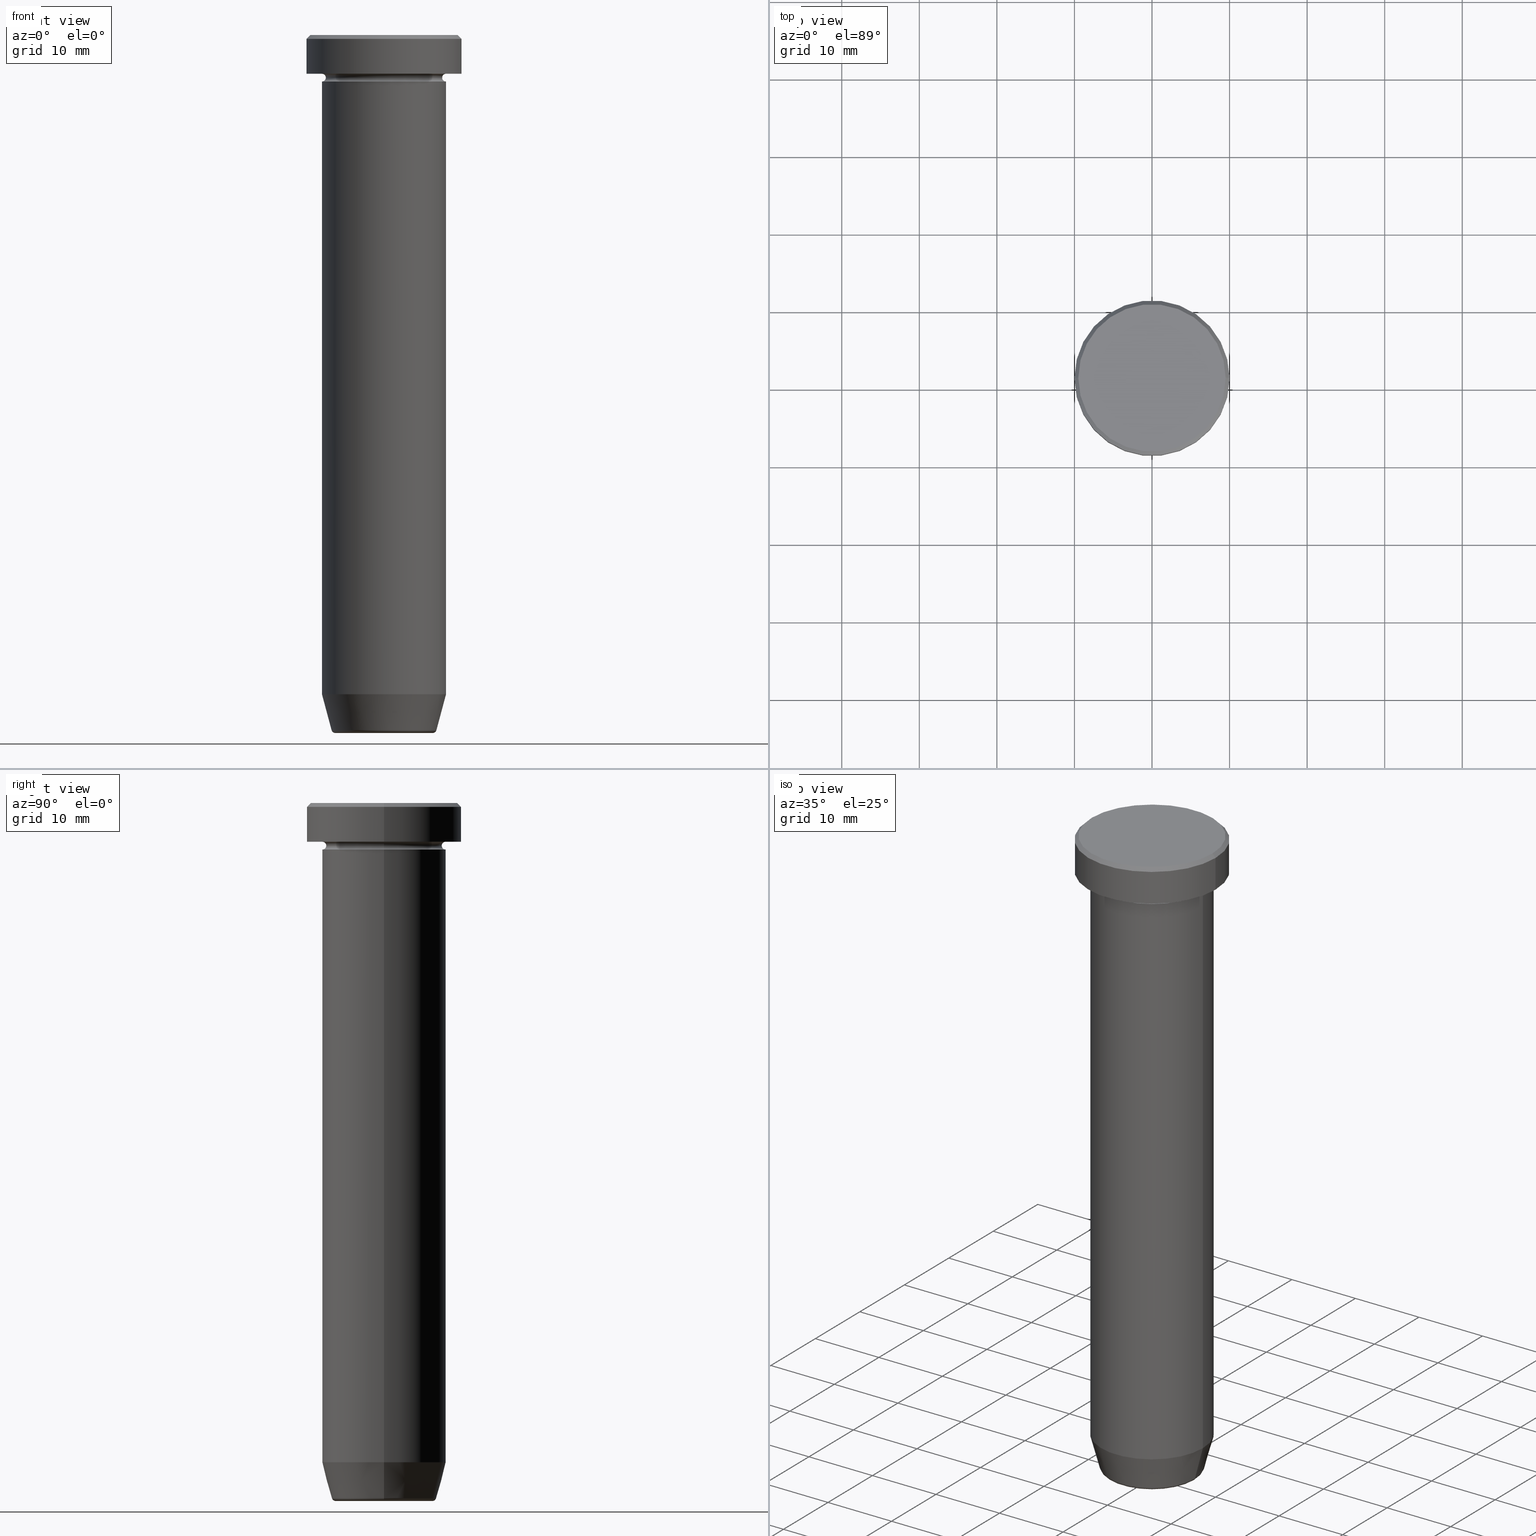
[diagram: canonical four-view strip — front | top / right | iso, engineering-drawing reading convention]
A machine part, canonical four-view strip (front | top / right | iso — engineering-drawing reading convention). The complete STEP part file that produces these views, byte-faithful:
ISO-10303-21;
HEADER;
FILE_DESCRIPTION (( 'STEP AP203' ),
    '1' );
FILE_NAME ('8b45.STEP',
    '2024-01-02T22:05:49',
    ( '' ),
    ( '' ),
    'SwSTEP 2.0',
    'SolidWorks 2019',
    '' );
FILE_SCHEMA (( 'CONFIG_CONTROL_DESIGN' ));
ENDSEC;

DATA;
#1 = DIRECTION ( 'NONE',  ( 1.000000000000000000, 0.000000000000000000, 0.000000000000000000 ) ) ;
#2 = ORIENTED_EDGE ( 'NONE', *, *, #20, .T. ) ;
#3 = CIRCLE ( 'NONE', #562, 8.000000000000000000 ) ;
#4 = LOCAL_TIME ( 23, 5, 49.00000000000000000, #597 ) ;
#5 = COORDINATED_UNIVERSAL_TIME_OFFSET ( 1, 0, .AHEAD. ) ;
#6 = LINE ( 'NONE', #510, #166 ) ;
#7 = ORIENTED_EDGE ( 'NONE', *, *, #205, .T. ) ;
#8 = CALENDAR_DATE ( 2024, 2, 1 ) ;
#9 = DIRECTION ( 'NONE',  ( 1.000000000000000000, 0.000000000000000000, 0.000000000000000000 ) ) ;
#10 = ORIENTED_EDGE ( 'NONE', *, *, #31, .F. ) ;
#11 = ADVANCED_FACE ( 'NONE', ( #86 ), #393, .T. ) ;
#12 = LINE ( 'NONE', #467, #375 ) ;
#13 = UNCERTAINTY_MEASURE_WITH_UNIT (LENGTH_MEASURE( 1.000000000000000082E-05 ), #97, 'distance_accuracy_value', 'NONE');
#14 = VECTOR ( 'NONE', #41, 1000.000000000000000 ) ;
#15 = CIRCLE ( 'NONE', #157, 8.000000000000000000 ) ;
#16 = AXIS2_PLACEMENT_3D ( 'NONE', #544, #37, #360 ) ;
#17 = CARTESIAN_POINT ( 'NONE',  ( 0.000000000000000000, 0.000000000000000000, -90.00000000000000000 ) ) ;
#18 = EDGE_LOOP ( 'NONE', ( #394, #294, #177, #195 ) ) ;
#19 = CARTESIAN_POINT ( 'NONE',  ( 8.000000000000000000, 0.000000000000000000, 0.000000000000000000 ) ) ;
#20 = EDGE_CURVE ( 'NONE', #169, #511, #317, .T. ) ;
#21 = ORIENTED_EDGE ( 'NONE', *, *, #198, .F. ) ;
#22 = DIRECTION ( 'NONE',  ( 1.000000000000000000, 0.000000000000000000, 0.000000000000000000 ) ) ;
#23 = ORIENTED_EDGE ( 'NONE', *, *, #134, .F. ) ;
#24 = CIRCLE ( 'NONE', #515, 9.499999999999994671 ) ;
#25 = AXIS2_PLACEMENT_3D ( 'NONE', #29, #486, #22 ) ;
#26 = LINE ( 'NONE', #207, #277 ) ;
#27 = AXIS2_PLACEMENT_3D ( 'NONE', #447, #308, #34 ) ;
#28 = ORIENTED_EDGE ( 'NONE', *, *, #245, .F. ) ;
#29 = CARTESIAN_POINT ( 'NONE',  ( 0.000000000000000000, 0.000000000000000000, -89.50000000000000000 ) ) ;
#30 = EDGE_LOOP ( 'NONE', ( #74, #241, #103, #115 ) ) ;
#31 = EDGE_CURVE ( 'NONE', #271, #152, #267, .T. ) ;
#32 = DIRECTION ( 'NONE',  ( -0.000000000000000000, -0.000000000000000000, 1.000000000000000000 ) ) ;
#33 = DIRECTION ( 'NONE',  ( -1.000000000000000000, 1.224646799147351482E-16, 0.000000000000000000 ) ) ;
#34 = DIRECTION ( 'NONE',  ( 1.000000000000000000, 0.000000000000000000, 0.000000000000000000 ) ) ;
#35 = AXIS2_PLACEMENT_3D ( 'NONE', #328, #513, #508 ) ;
#36 = DIRECTION ( 'NONE',  ( -1.000000000000000000, 0.000000000000000000, 0.000000000000000000 ) ) ;
#37 = DIRECTION ( 'NONE',  ( -0.000000000000000000, -0.000000000000000000, 1.000000000000000000 ) ) ;
#38 = CARTESIAN_POINT ( 'NONE',  ( -8.000000000000000000, 9.797174393178825657E-16, 0.000000000000000000 ) ) ;
#39 = ADVANCED_FACE ( 'NONE', ( #91, #405 ), #545, .T. ) ;
#40 = DIRECTION ( 'NONE',  ( 1.000000000000000000, 0.000000000000000000, 0.000000000000000000 ) ) ;
#41 = DIRECTION ( 'NONE',  ( -0.000000000000000000, -0.000000000000000000, 1.000000000000000000 ) ) ;
#42 = CARTESIAN_POINT ( 'NONE',  ( 0.000000000000000000, 0.000000000000000000, -22.50000000000000000 ) ) ;
#43 = CARTESIAN_POINT ( 'NONE',  ( 6.276590543854902116, 0.000000000000000000, -90.00000000000000000 ) ) ;
#44 = AXIS2_PLACEMENT_3D ( 'NONE', #437, #527, #68 ) ;
#45 = EDGE_CURVE ( 'NONE', #542, #210, #362, .T. ) ;
#46 = DIRECTION ( 'NONE',  ( 1.000000000000000000, 0.000000000000000000, 0.000000000000000000 ) ) ;
#47 = FACE_OUTER_BOUND ( 'NONE', #156, .T. ) ;
#48 = PERSON_AND_ORGANIZATION_ROLE ( 'classification_officer' ) ;
#49 = APPROVAL ( #54, 'NEUR�EN�' ) ;
#50 = DIRECTION ( 'NONE',  ( 1.000000000000000000, 0.000000000000000000, 0.000000000000000000 ) ) ;
#51 = COORDINATED_UNIVERSAL_TIME_OFFSET ( 1, 0, .AHEAD. ) ;
#52 = DIRECTION ( 'NONE',  ( 0.000000000000000000, 0.000000000000000000, -1.000000000000000000 ) ) ;
#53 = TOROIDAL_SURFACE ( 'NONE', #129, 6.276590543854902116, 0.5000000000000000000 ) ;
#54 = APPROVAL_STATUS ( 'not_yet_approved' ) ;
#55 = CARTESIAN_POINT ( 'NONE',  ( 0.000000000000000000, 0.000000000000000000, -6.000000000000000000 ) ) ;
#56 = ORIENTED_EDGE ( 'NONE', *, *, #31, .T. ) ;
#57 = EDGE_CURVE ( 'NONE', #238, #271, #184, .T. ) ;
#58 = PERSON_AND_ORGANIZATION_ROLE ( 'creator' ) ;
#59 = DIRECTION ( 'NONE',  ( 1.000000000000000000, 0.000000000000000000, 0.000000000000000000 ) ) ;
#60 = EDGE_LOOP ( 'NONE', ( #514, #56, #520, #488 ) ) ;
#61 = CC_DESIGN_PERSON_AND_ORGANIZATION_ASSIGNMENT ( #558, #58, ( #258 ) ) ;
#62 = DIRECTION ( 'NONE',  ( 1.000000000000000000, 0.000000000000000000, 0.000000000000000000 ) ) ;
#63 = DESIGN_CONTEXT ( 'detailed design', #442, 'design' ) ;
#64 = ORIENTED_EDGE ( 'NONE', *, *, #590, .F. ) ;
#65 = VECTOR ( 'NONE', #233, 1000.000000000000114 ) ;
#66 = EDGE_CURVE ( 'NONE', #140, #424, #450, .T. ) ;
#67 = CC_DESIGN_APPROVAL ( #79, ( #291 ) ) ;
#68 = DIRECTION ( 'NONE',  ( 1.000000000000000000, 0.000000000000000000, 0.000000000000000000 ) ) ;
#69 = VERTEX_POINT ( 'NONE', #315 ) ;
#70 = DIRECTION ( 'NONE',  ( 1.000000000000000000, 0.000000000000000000, 0.000000000000000000 ) ) ;
#71 = PRODUCT ( '8b45', '8b45', '', ( #414 ) ) ;
#72 = ORIENTED_EDGE ( 'NONE', *, *, #57, .T. ) ;
#73 = DIRECTION ( 'NONE',  ( -0.000000000000000000, -0.000000000000000000, 1.000000000000000000 ) ) ;
#74 = ORIENTED_EDGE ( 'NONE', *, *, #530, .T. ) ;
#75 = AXIS2_PLACEMENT_3D ( 'NONE', #222, #220, #453 ) ;
#76 = DIRECTION ( 'NONE',  ( 1.000000000000000000, 0.000000000000000000, 0.000000000000000000 ) ) ;
#77 = AXIS2_PLACEMENT_3D ( 'NONE', #310, #498, #84 ) ;
#78 = ORIENTED_EDGE ( 'NONE', *, *, #66, .T. ) ;
#79 = APPROVAL ( #239, 'NEUR�EN�' ) ;
#80 = CARTESIAN_POINT ( 'NONE',  ( 0.000000000000000000, -3.469446951953614189E-15, -22.50000000000000000 ) ) ;
#81 = DIRECTION ( 'NONE',  ( -0.000000000000000000, -1.000000000000000000, -0.000000000000000000 ) ) ;
#82 = PLANE ( 'NONE',  #27 ) ;
#83 = DIRECTION ( 'NONE',  ( 0.000000000000000000, 0.000000000000000000, -1.000000000000000000 ) ) ;
#84 = DIRECTION ( 'NONE',  ( 1.000000000000000000, 0.000000000000000000, 0.000000000000000000 ) ) ;
#85 = EDGE_CURVE ( 'NONE', #127, #238, #175, .T. ) ;
#86 = FACE_OUTER_BOUND ( 'NONE', #60, .T. ) ;
#87 = LOCAL_TIME ( 23, 5, 49.00000000000000000, #145 ) ;
#88 = DIRECTION ( 'NONE',  ( -0.000000000000000000, -0.000000000000000000, 1.000000000000000000 ) ) ;
#89 = DIRECTION ( 'NONE',  ( -0.000000000000000000, -0.000000000000000000, 1.000000000000000000 ) ) ;
#90 = CARTESIAN_POINT ( 'NONE',  ( -7.500000000000000000, 9.491012693391985815E-16, -5.500000000000000000 ) ) ;
#91 = FACE_BOUND ( 'NONE', #352, .T. ) ;
#92 = PERSON_AND_ORGANIZATION ( #571, #121 ) ;
#93 = DIRECTION ( 'NONE',  ( -0.000000000000000000, -0.000000000000000000, 1.000000000000000000 ) ) ;
#94 = CIRCLE ( 'NONE', #303, 7.500000000000000000 ) ;
#95 = PERSON_AND_ORGANIZATION_ROLE ( 'creator' ) ;
#96 = DIRECTION ( 'NONE',  ( -0.000000000000000000, -0.000000000000000000, 1.000000000000000000 ) ) ;
#97 =( LENGTH_UNIT ( ) NAMED_UNIT ( * ) SI_UNIT ( .MILLI., .METRE. ) );
#98 = FACE_OUTER_BOUND ( 'NONE', #30, .T. ) ;
#99 = ORIENTED_EDGE ( 'NONE', *, *, #523, .T. ) ;
#100 = CALENDAR_DATE ( 2024, 2, 1 ) ;
#101 = ADVANCED_FACE ( 'NONE', ( #309 ), #284, .F. ) ;
#102 = DIRECTION ( 'NONE',  ( -1.000000000000000000, 0.000000000000000000, 0.000000000000000000 ) ) ;
#103 = ORIENTED_EDGE ( 'NONE', *, *, #205, .F. ) ;
#104 = AXIS2_PLACEMENT_3D ( 'NONE', #171, #217, #176 ) ;
#105 = DIRECTION ( 'NONE',  ( 1.224646799147353207E-16, 1.000000000000000000, 0.000000000000000000 ) ) ;
#106 = CARTESIAN_POINT ( 'NONE',  ( 0.000000000000000000, 8.000000000000000000, -22.50000000000000000 ) ) ;
#107 = FACE_OUTER_BOUND ( 'NONE', #417, .T. ) ;
#108 = ORIENTED_EDGE ( 'NONE', *, *, #45, .T. ) ;
#109 = AXIS2_PLACEMENT_3D ( 'NONE', #132, #501, #172 ) ;
#110 = AXIS2_PLACEMENT_3D ( 'NONE', #435, #160, #338 ) ;
#111 = AXIS2_PLACEMENT_3D ( 'NONE', #313, #88, #355 ) ;
#112 = DIRECTION ( 'NONE',  ( 1.000000000000000000, 0.000000000000000000, 0.000000000000000000 ) ) ;
#113 = ORIENTED_EDGE ( 'NONE', *, *, #125, .T. ) ;
#114 = DIRECTION ( 'NONE',  ( 1.000000000000000000, 0.000000000000000000, 0.000000000000000000 ) ) ;
#115 = ORIENTED_EDGE ( 'NONE', *, *, #45, .F. ) ;
#116 = CARTESIAN_POINT ( 'NONE',  ( 0.000000000000000000, 0.000000000000000000, -90.00000000000000000 ) ) ;
#117 = EDGE_CURVE ( 'NONE', #208, #200, #24, .T. ) ;
#118 = EDGE_LOOP ( 'NONE', ( #483, #2, #479, #570 ) ) ;
#119 = CIRCLE ( 'NONE', #35, 8.000000000000000000 ) ;
#120 = PLANE ( 'NONE',  #584 ) ;
#121 = ORGANIZATION ( 'NEUR�EN�', 'NEUR�EN�', '' ) ;
#122 = ORIENTED_EDGE ( 'NONE', *, *, #554, .F. ) ;
#123 = FACE_OUTER_BOUND ( 'NONE', #260, .T. ) ;
#124 = CARTESIAN_POINT ( 'NONE',  ( 0.000000000000000000, 10.00000000000000000, -5.000000000000000000 ) ) ;
#125 = EDGE_CURVE ( 'NONE', #127, #152, #593, .T. ) ;
#126 = DIRECTION ( 'NONE',  ( -0.000000000000000000, -0.000000000000000000, 1.000000000000000000 ) ) ;
#127 = VERTEX_POINT ( 'NONE', #43 ) ;
#128 = CYLINDRICAL_SURFACE ( 'NONE', #111, 8.000000000000000000 ) ;
#129 = AXIS2_PLACEMENT_3D ( 'NONE', #407, #588, #40 ) ;
#130 = VERTEX_POINT ( 'NONE', #596 ) ;
#131 = DIRECTION ( 'NONE',  ( -1.000000000000000000, 0.000000000000000000, 0.000000000000000000 ) ) ;
#132 = CARTESIAN_POINT ( 'NONE',  ( 0.000000000000000000, 0.000000000000000000, -90.00000000000000000 ) ) ;
#133 = CARTESIAN_POINT ( 'NONE',  ( -10.00000000000000000, 1.224646799147353256E-15, -5.000000000000000000 ) ) ;
#134 = EDGE_CURVE ( 'NONE', #200, #208, #507, .T. ) ;
#135 = APPROVAL_ROLE ( '' ) ;
#136 = DIRECTION ( 'NONE',  ( -0.000000000000000000, -0.000000000000000000, 1.000000000000000000 ) ) ;
#137 = AXIS2_PLACEMENT_3D ( 'NONE', #378, #105, #240 ) ;
#138 = COORDINATED_UNIVERSAL_TIME_OFFSET ( 1, 0, .AHEAD. ) ;
#139 = CARTESIAN_POINT ( 'NONE',  ( 6.759553456999437770, 0.000000000000000000, -89.62940952255125637 ) ) ;
#140 = VERTEX_POINT ( 'NONE', #133 ) ;
#141 = EDGE_CURVE ( 'NONE', #454, #188, #6, .T. ) ;
#142 = DATE_AND_TIME ( #190, #364 ) ;
#143 = CARTESIAN_POINT ( 'NONE',  ( -8.000000000000000000, 9.797174393178825657E-16, -84.99999999999998579 ) ) ;
#144 = VERTEX_POINT ( 'NONE', #196 ) ;
#145 = COORDINATED_UNIVERSAL_TIME_OFFSET ( 1, 0, .AHEAD. ) ;
#146 = CARTESIAN_POINT ( 'NONE',  ( 8.000000000000000000, 9.797174393178825657E-16, -5.500000000000000000 ) ) ;
#147 = ORIENTED_EDGE ( 'NONE', *, *, #261, .F. ) ;
#148 = AXIS2_PLACEMENT_3D ( 'NONE', #116, #199, #70 ) ;
#149 = AXIS2_PLACEMENT_3D ( 'NONE', #463, #426, #46 ) ;
#150 = DIRECTION ( 'NONE',  ( 0.000000000000000000, 0.000000000000000000, -1.000000000000000000 ) ) ;
#151 = EDGE_CURVE ( 'NONE', #130, #69, #385, .T. ) ;
#152 = VERTEX_POINT ( 'NONE', #139 ) ;
#153 = CYLINDRICAL_SURFACE ( 'NONE', #186, 8.000000000000000000 ) ;
#154 = ORIENTED_EDGE ( 'NONE', *, *, #20, .F. ) ;
#155 = CARTESIAN_POINT ( 'NONE',  ( 0.000000000000000000, 0.000000000000000000, -84.99999999999998579 ) ) ;
#156 = EDGE_LOOP ( 'NONE', ( #28, #78, #522, #247 ) ) ;
#157 = AXIS2_PLACEMENT_3D ( 'NONE', #55, #136, #9 ) ;
#158 = VECTOR ( 'NONE', #225, 1000.000000000000114 ) ;
#159 = SHAPE_DEFINITION_REPRESENTATION ( #587, #543 ) ;
#160 = DIRECTION ( 'NONE',  ( 0.000000000000000000, 0.000000000000000000, -1.000000000000000000 ) ) ;
#161 = EDGE_LOOP ( 'NONE', ( #495, #349 ) ) ;
#162 = EDGE_CURVE ( 'NONE', #202, #434, #516, .T. ) ;
#163 = DIRECTION ( 'NONE',  ( 0.000000000000000000, 0.000000000000000000, -1.000000000000000000 ) ) ;
#164 = ORIENTED_EDGE ( 'NONE', *, *, #538, .T. ) ;
#165 = ORIENTED_EDGE ( 'NONE', *, *, #314, .T. ) ;
#166 = VECTOR ( 'NONE', #565, 1000.000000000000000 ) ;
#167 = CARTESIAN_POINT ( 'NONE',  ( -8.000000000000000000, 9.797174393178825657E-16, -22.50000000000000000 ) ) ;
#168 = VECTOR ( 'NONE', #126, 1000.000000000000000 ) ;
#169 = VERTEX_POINT ( 'NONE', #143 ) ;
#170 = ADVANCED_FACE ( 'NONE', ( #98 ), #583, .F. ) ;
#171 = CARTESIAN_POINT ( 'NONE',  ( 0.000000000000000000, 0.000000000000000000, -5.500000000000000000 ) ) ;
#172 = DIRECTION ( 'NONE',  ( 1.000000000000000000, 0.000000000000000000, 0.000000000000000000 ) ) ;
#173 = FACE_OUTER_BOUND ( 'NONE', #529, .T. ) ;
#174 = DIRECTION ( 'NONE',  ( -0.000000000000000000, -0.000000000000000000, 1.000000000000000000 ) ) ;
#175 = CIRCLE ( 'NONE', #109, 6.276590543854902116 ) ;
#176 = DIRECTION ( 'NONE',  ( 1.000000000000000000, 0.000000000000000000, 0.000000000000000000 ) ) ;
#177 = ORIENTED_EDGE ( 'NONE', *, *, #232, .F. ) ;
#178 = CIRCLE ( 'NONE', #334, 7.500000000000000000 ) ;
#179 = EDGE_CURVE ( 'NONE', #152, #144, #506, .T. ) ;
#180 = DIRECTION ( 'NONE',  ( -0.000000000000000000, -0.000000000000000000, 1.000000000000000000 ) ) ;
#181 = CYLINDRICAL_SURFACE ( 'NONE', #492, 8.000000000000000000 ) ;
#182 = EDGE_LOOP ( 'NONE', ( #568, #165, #356, #525 ) ) ;
#183 = PERSON_AND_ORGANIZATION ( #571, #121 ) ;
#184 = CIRCLE ( 'NONE', #581, 0.5000000000000004441 ) ;
#185 = DIRECTION ( 'NONE',  ( -0.2588190451025211836, 3.169619151431770488E-17, 0.9659258262890680902 ) ) ;
#186 = AXIS2_PLACEMENT_3D ( 'NONE', #293, #531, #114 ) ;
#187 = CIRCLE ( 'NONE', #269, 8.000000000000000000 ) ;
#188 = VERTEX_POINT ( 'NONE', #416 ) ;
#189 = EDGE_CURVE ( 'NONE', #202, #542, #94, .T. ) ;
#190 = CALENDAR_DATE ( 2024, 2, 1 ) ;
#191 = DIRECTION ( 'NONE',  ( -0.000000000000000000, -0.000000000000000000, 1.000000000000000000 ) ) ;
#192 = ORIENTED_EDGE ( 'NONE', *, *, #117, .F. ) ;
#193 = APPROVAL_STATUS ( 'not_yet_approved' ) ;
#194 = CARTESIAN_POINT ( 'NONE',  ( -6.276590543854902116, 7.982336011935118383E-16, -90.00000000000000000 ) ) ;
#195 = ORIENTED_EDGE ( 'NONE', *, *, #320, .F. ) ;
#196 = CARTESIAN_POINT ( 'NONE',  ( 8.000000000000000000, 0.000000000000000000, -84.99999999999998579 ) ) ;
#197 = VECTOR ( 'NONE', #93, 1000.000000000000000 ) ;
#198 = EDGE_CURVE ( 'NONE', #542, #188, #403, .T. ) ;
#199 = DIRECTION ( 'NONE',  ( -0.000000000000000000, -0.000000000000000000, 1.000000000000000000 ) ) ;
#200 = VERTEX_POINT ( 'NONE', #235 ) ;
#201 = DIRECTION ( 'NONE',  ( 1.000000000000000000, 0.000000000000000000, 0.000000000000000000 ) ) ;
#202 = VERTEX_POINT ( 'NONE', #427 ) ;
#203 = CARTESIAN_POINT ( 'NONE',  ( 10.00000000000000000, 0.000000000000000000, -5.000000000000000000 ) ) ;
#204 = ORIENTED_EDGE ( 'NONE', *, *, #314, .F. ) ;
#205 = EDGE_CURVE ( 'NONE', #210, #476, #119, .T. ) ;
#206 = VECTOR ( 'NONE', #73, 1000.000000000000000 ) ;
#207 = CARTESIAN_POINT ( 'NONE',  ( -9.499999999999994671, 0.000000000000000000, 0.000000000000000000 ) ) ;
#208 = VERTEX_POINT ( 'NONE', #326 ) ;
#209 = DIRECTION ( 'NONE',  ( -0.000000000000000000, -0.000000000000000000, 1.000000000000000000 ) ) ;
#210 = VERTEX_POINT ( 'NONE', #560 ) ;
#211 = CARTESIAN_POINT ( 'NONE',  ( 0.000000000000000000, 0.000000000000000000, -0.5000000000000056621 ) ) ;
#212 = ADVANCED_FACE ( 'NONE', ( #464 ), #181, .T. ) ;
#213 = CARTESIAN_POINT ( 'NONE',  ( 0.000000000000000000, 0.000000000000000000, -89.62940952255125637 ) ) ;
#214 = AXIS2_PLACEMENT_3D ( 'NONE', #219, #174, #276 ) ;
#215 = CLOSED_SHELL ( 'NONE', ( #340, #170, #487, #509, #379, #388, #406, #274, #39, #429, #549, #101, #331 ) ) ;
#216 = AXIS2_PLACEMENT_3D ( 'NONE', #17, #163, #62 ) ;
#217 = DIRECTION ( 'NONE',  ( -0.000000000000000000, -0.000000000000000000, 1.000000000000000000 ) ) ;
#218 = TOROIDAL_SURFACE ( 'NONE', #440, 8.000000000000000000, 0.5000000000000000000 ) ;
#219 = CARTESIAN_POINT ( 'NONE',  ( 0.000000000000000000, 0.000000000000000000, -5.000000000000000000 ) ) ;
#220 = DIRECTION ( 'NONE',  ( -0.000000000000000000, -0.000000000000000000, 1.000000000000000000 ) ) ;
#221 = DIRECTION ( 'NONE',  ( -1.000000000000000000, 0.000000000000000000, -0.000000000000000000 ) ) ;
#222 = CARTESIAN_POINT ( 'NONE',  ( 0.000000000000000000, 0.000000000000000000, -89.62940952255125637 ) ) ;
#223 = DIRECTION ( 'NONE',  ( 1.000000000000000000, 0.000000000000000000, 0.000000000000000000 ) ) ;
#224 = EDGE_CURVE ( 'NONE', #144, #397, #285, .T. ) ;
#225 = DIRECTION ( 'NONE',  ( 0.7071067811865474617, 8.659560562354932858E-17, -0.7071067811865474617 ) ) ;
#226 = AXIS2_PLACEMENT_3D ( 'NONE', #428, #96, #1 ) ;
#227 = ORIENTED_EDGE ( 'NONE', *, *, #496, .F. ) ;
#228 = APPROVAL_PERSON_ORGANIZATION ( #512, #345, #380 ) ;
#229 = DATE_AND_TIME ( #100, #386 ) ;
#230 = CARTESIAN_POINT ( 'NONE',  ( 0.000000000000000000, 0.000000000000000000, -5.500000000000000000 ) ) ;
#231 = PERSON_AND_ORGANIZATION ( #571, #121 ) ;
#232 = EDGE_CURVE ( 'NONE', #434, #188, #15, .T. ) ;
#233 = DIRECTION ( 'NONE',  ( 0.2588190451025211836, 0.000000000000000000, 0.9659258262890680902 ) ) ;
#234 = PERSON_AND_ORGANIZATION_ROLE ( 'design_supplier' ) ;
#235 = CARTESIAN_POINT ( 'NONE',  ( 9.499999999999994671, 1.194030629168669075E-15, 0.000000000000000000 ) ) ;
#236 = AXIS2_PLACEMENT_3D ( 'NONE', #146, #332, #384 ) ;
#237 = CC_DESIGN_APPROVAL ( #345, ( #493 ) ) ;
#238 = VERTEX_POINT ( 'NONE', #194 ) ;
#239 = APPROVAL_STATUS ( 'not_yet_approved' ) ;
#240 = DIRECTION ( 'NONE',  ( -1.000000000000000000, 1.224646799147353454E-16, 0.000000000000000000 ) ) ;
#241 = ORIENTED_EDGE ( 'NONE', *, *, #261, .T. ) ;
#242 = CARTESIAN_POINT ( 'NONE',  ( -10.00000000000000000, 1.224646799147353256E-15, 0.000000000000000000 ) ) ;
#243 = ORIENTED_EDGE ( 'NONE', *, *, #224, .T. ) ;
#244 = MANIFOLD_SOLID_BREP ( 'Zkosen�1', #215 ) ;
#245 = EDGE_CURVE ( 'NONE', #140, #130, #381, .T. ) ;
#246 = DIRECTION ( 'NONE',  ( -0.000000000000000000, -0.000000000000000000, 1.000000000000000000 ) ) ;
#247 = ORIENTED_EDGE ( 'NONE', *, *, #504, .T. ) ;
#248 = CIRCLE ( 'NONE', #236, 0.5000000000000004441 ) ;
#249 = MANIFOLD_SOLID_BREP ( 'Zaoblit4', #459 ) ;
#250 = CIRCLE ( 'NONE', #77, 8.000000000000000000 ) ;
#251 = DIRECTION ( 'NONE',  ( -1.000000000000000000, 0.000000000000000000, 0.000000000000000000 ) ) ;
#252 = ORIENTED_EDGE ( 'NONE', *, *, #162, .T. ) ;
#253 = CARTESIAN_POINT ( 'NONE',  ( 0.000000000000000000, 0.000000000000000000, 0.000000000000000000 ) ) ;
#254 = ORIENTED_EDGE ( 'NONE', *, *, #245, .T. ) ;
#255 = DIRECTION ( 'NONE',  ( -1.000000000000000000, 0.000000000000000000, -0.000000000000000000 ) ) ;
#256 = VERTEX_POINT ( 'NONE', #419 ) ;
#257 = AXIS2_PLACEMENT_3D ( 'NONE', #230, #52, #102 ) ;
#258 = PRODUCT_DEFINITION_FORMATION_WITH_SPECIFIED_SOURCE ( 'LIBOVOLN�', '', #71, .NOT_KNOWN. ) ;
#259 = CYLINDRICAL_SURFACE ( 'NONE', #395, 8.000000000000000000 ) ;
#260 = EDGE_LOOP ( 'NONE', ( #536, #400 ) ) ;
#261 = EDGE_CURVE ( 'NONE', #202, #476, #248, .T. ) ;
#262 = DIRECTION ( 'NONE',  ( -0.000000000000000000, -0.000000000000000000, 1.000000000000000000 ) ) ;
#263 = ORIENTED_EDGE ( 'NONE', *, *, #598, .T. ) ;
#264 = CARTESIAN_POINT ( 'NONE',  ( 9.499999999999994671, 1.163414459189984894E-15, 0.000000000000000000 ) ) ;
#265 = APPLICATION_CONTEXT ( 'configuration controlled 3d designs of mechanical parts and assemblies' ) ;
#266 = CARTESIAN_POINT ( 'NONE',  ( 0.000000000000000000, 0.000000000000000000, -5.500000000000000000 ) ) ;
#267 = CIRCLE ( 'NONE', #481, 6.759553456999436882 ) ;
#268 = AXIS2_PLACEMENT_3D ( 'NONE', #390, #209, #489 ) ;
#269 = AXIS2_PLACEMENT_3D ( 'NONE', #42, #350, #357 ) ;
#270 = CARTESIAN_POINT ( 'NONE',  ( 8.000000000000000000, 9.797174393178825657E-16, -4.999999999999999112 ) ) ;
#271 = VERTEX_POINT ( 'NONE', #519 ) ;
#272 = CARTESIAN_POINT ( 'NONE',  ( -8.000000000000000000, 9.797174393178825657E-16, -22.50000000000000000 ) ) ;
#273 = DIRECTION ( 'NONE',  ( 0.000000000000000000, 0.000000000000000000, -1.000000000000000000 ) ) ;
#274 = ADVANCED_FACE ( 'NONE', ( #47 ), #323, .T. ) ;
#275 = FACE_OUTER_BOUND ( 'NONE', #298, .T. ) ;
#276 = DIRECTION ( 'NONE',  ( 1.000000000000000000, 0.000000000000000000, 0.000000000000000000 ) ) ;
#277 = VECTOR ( 'NONE', #478, 1000.000000000000114 ) ;
#278 = CARTESIAN_POINT ( 'NONE',  ( 0.000000000000000000, 0.000000000000000000, -0.5000000000000056621 ) ) ;
#279 = EDGE_CURVE ( 'NONE', #271, #169, #12, .T. ) ;
#280 = PERSON_AND_ORGANIZATION ( #571, #121 ) ;
#281 = DIRECTION ( 'NONE',  ( -0.000000000000000000, -0.000000000000000000, 1.000000000000000000 ) ) ;
#282 =( NAMED_UNIT ( * ) PLANE_ANGLE_UNIT ( ) SI_UNIT ( $, .RADIAN. ) );
#283 = CARTESIAN_POINT ( 'NONE',  ( 8.000000000000000000, 0.000000000000000000, -5.500000000000000000 ) ) ;
#284 = TOROIDAL_SURFACE ( 'NONE', #330, 8.000000000000000000, 0.5000000000000000000 ) ;
#285 = LINE ( 'NONE', #473, #431 ) ;
#286 = CIRCLE ( 'NONE', #595, 10.00000000000000000 ) ;
#287 = ORIENTED_EDGE ( 'NONE', *, *, #425, .T. ) ;
#288 = PERSON_AND_ORGANIZATION_ROLE ( 'design_owner' ) ;
#289 = DIRECTION ( 'NONE',  ( 1.000000000000000000, 0.000000000000000000, 0.000000000000000000 ) ) ;
#290 = ORIENTED_EDGE ( 'NONE', *, *, #425, .F. ) ;
#291 = PRODUCT_DEFINITION ( 'NEZN�M�', '', #258, #63 ) ;
#292 = DIRECTION ( 'NONE',  ( 1.000000000000000000, 0.000000000000000000, 0.000000000000000000 ) ) ;
#293 = CARTESIAN_POINT ( 'NONE',  ( 0.000000000000000000, 0.000000000000000000, 0.000000000000000000 ) ) ;
#294 = ORIENTED_EDGE ( 'NONE', *, *, #141, .T. ) ;
#295 = AXIS2_PLACEMENT_3D ( 'NONE', #484, #346, #292 ) ;
#296 = ADVANCED_FACE ( 'NONE', ( #376 ), #573, .T. ) ;
#297 = CYLINDRICAL_SURFACE ( 'NONE', #343, 10.00000000000000000 ) ;
#298 = EDGE_LOOP ( 'NONE', ( #21, #337, #252, #491 ) ) ;
#299 = FACE_OUTER_BOUND ( 'NONE', #118, .T. ) ;
#300 = ORIENTED_EDGE ( 'NONE', *, *, #198, .T. ) ;
#301 = FACE_OUTER_BOUND ( 'NONE', #182, .T. ) ;
#302 = EDGE_LOOP ( 'NONE', ( #227, #204 ) ) ;
#303 = AXIS2_PLACEMENT_3D ( 'NONE', #559, #191, #59 ) ;
#304 = LOCAL_TIME ( 23, 5, 49.00000000000000000, #51 ) ;
#305 = DIRECTION ( 'NONE',  ( 1.000000000000000000, 0.000000000000000000, 0.000000000000000000 ) ) ;
#306 = EDGE_LOOP ( 'NONE', ( #154, #361, #243, #122 ) ) ;
#307 = EDGE_CURVE ( 'NONE', #169, #144, #594, .T. ) ;
#308 = DIRECTION ( 'NONE',  ( 0.000000000000000000, -0.000000000000000000, 1.000000000000000000 ) ) ;
#309 = FACE_OUTER_BOUND ( 'NONE', #534, .T. ) ;
#310 = CARTESIAN_POINT ( 'NONE',  ( 0.000000000000000000, 0.000000000000000000, -6.000000000000000000 ) ) ;
#311 = CARTESIAN_POINT ( 'NONE',  ( 0.000000000000000000, 0.000000000000000000, 0.000000000000000000 ) ) ;
#312 = AXIS2_PLACEMENT_3D ( 'NONE', #336, #524, #112 ) ;
#313 = CARTESIAN_POINT ( 'NONE',  ( 0.000000000000000000, 0.000000000000000000, 0.000000000000000000 ) ) ;
#314 = EDGE_CURVE ( 'NONE', #454, #256, #333, .T. ) ;
#315 = CARTESIAN_POINT ( 'NONE',  ( 10.00000000000000000, 0.000000000000000000, -0.5000000000000056621 ) ) ;
#316 = DIRECTION ( 'NONE',  ( -0.000000000000000000, -0.000000000000000000, 1.000000000000000000 ) ) ;
#317 = LINE ( 'NONE', #38, #14 ) ;
#318 = APPROVAL_DATE_TIME ( #551, #79 ) ;
#319 = DIRECTION ( 'NONE',  ( 0.000000000000000000, 0.000000000000000000, -1.000000000000000000 ) ) ;
#320 = EDGE_CURVE ( 'NONE', #256, #434, #399, .T. ) ;
#321 = DATE_AND_TIME ( #8, #304 ) ;
#322 = AXIS2_PLACEMENT_3D ( 'NONE', #283, #553, #599 ) ;
#323 = CYLINDRICAL_SURFACE ( 'NONE', #226, 10.00000000000000000 ) ;
#324 = ORIENTED_EDGE ( 'NONE', *, *, #151, .F. ) ;
#325 = DATE_TIME_ROLE ( 'creation_date' ) ;
#326 = CARTESIAN_POINT ( 'NONE',  ( -9.499999999999994671, 0.000000000000000000, 0.000000000000000000 ) ) ;
#327 = DATE_TIME_ROLE ( 'classification_date' ) ;
#328 = CARTESIAN_POINT ( 'NONE',  ( 0.000000000000000000, 0.000000000000000000, -5.000000000000000000 ) ) ;
#329 = CALENDAR_DATE ( 2024, 2, 1 ) ;
#330 = AXIS2_PLACEMENT_3D ( 'NONE', #266, #273, #36 ) ;
#331 = ADVANCED_FACE ( 'NONE', ( #341 ), #461, .T. ) ;
#332 = DIRECTION ( 'NONE',  ( -1.224646799147353207E-16, 1.000000000000000000, 0.000000000000000000 ) ) ;
#333 = CIRCLE ( 'NONE', #268, 8.000000000000000000 ) ;
#334 = AXIS2_PLACEMENT_3D ( 'NONE', #455, #316, #494 ) ;
#335 = EDGE_LOOP ( 'NONE', ( #347, #575, #113, #10 ) ) ;
#336 = CARTESIAN_POINT ( 'NONE',  ( 0.000000000000000000, 0.000000000000000000, -22.50000000000000000 ) ) ;
#337 = ORIENTED_EDGE ( 'NONE', *, *, #189, .F. ) ;
#338 = DIRECTION ( 'NONE',  ( -1.000000000000000000, 0.000000000000000000, 0.000000000000000000 ) ) ;
#339 = EDGE_LOOP ( 'NONE', ( #532, #470 ) ) ;
#340 = ADVANCED_FACE ( 'NONE', ( #430 ), #526, .T. ) ;
#341 = FACE_OUTER_BOUND ( 'NONE', #382, .T. ) ;
#342 = ORIENTED_EDGE ( 'NONE', *, *, #117, .T. ) ;
#343 = AXIS2_PLACEMENT_3D ( 'NONE', #569, #521, #76 ) ;
#344 = CC_DESIGN_APPROVAL ( #49, ( #258 ) ) ;
#345 = APPROVAL ( #193, 'NEUR�EN�' ) ;
#346 = DIRECTION ( 'NONE',  ( 0.000000000000000000, -0.000000000000000000, 1.000000000000000000 ) ) ;
#347 = ORIENTED_EDGE ( 'NONE', *, *, #57, .F. ) ;
#348 = PLANE ( 'NONE',  #537 ) ;
#349 = ORIENTED_EDGE ( 'NONE', *, *, #554, .T. ) ;
#350 = DIRECTION ( 'NONE',  ( -0.000000000000000000, -0.000000000000000000, 1.000000000000000000 ) ) ;
#351 = EDGE_CURVE ( 'NONE', #238, #127, #451, .T. ) ;
#352 = EDGE_LOOP ( 'NONE', ( #7, #391 ) ) ;
#353 = AXIS2_PLACEMENT_3D ( 'NONE', #586, #81, #83 ) ;
#354 = TOROIDAL_SURFACE ( 'NONE', #104, 8.000000000000000000, 0.5000000000000000000 ) ;
#355 = DIRECTION ( 'NONE',  ( 1.000000000000000000, 0.000000000000000000, 0.000000000000000000 ) ) ;
#356 = ORIENTED_EDGE ( 'NONE', *, *, #320, .T. ) ;
#357 = DIRECTION ( 'NONE',  ( 1.000000000000000000, 0.000000000000000000, 0.000000000000000000 ) ) ;
#358 = DIRECTION ( 'NONE',  ( 0.000000000000000000, 0.000000000000000000, -1.000000000000000000 ) ) ;
#359 = EDGE_CURVE ( 'NONE', #144, #169, #3, .T. ) ;
#360 = DIRECTION ( 'NONE',  ( 1.000000000000000000, 0.000000000000000000, 0.000000000000000000 ) ) ;
#361 = ORIENTED_EDGE ( 'NONE', *, *, #307, .T. ) ;
#362 = CIRCLE ( 'NONE', #353, 0.5000000000000004441 ) ;
#363 = AXIS2_PLACEMENT_3D ( 'NONE', #578, #548, #131 ) ;
#364 = LOCAL_TIME ( 23, 5, 49.00000000000000000, #5 ) ;
#365 = CARTESIAN_POINT ( 'NONE',  ( 0.000000000000000000, 0.000000000000000000, -5.000000000000000000 ) ) ;
#366 = CARTESIAN_POINT ( 'NONE',  ( 0.000000000000000000, 0.000000000000000000, -90.00000000000000000 ) ) ;
#367 = APPROVAL_ROLE ( '' ) ;
#368 = EDGE_CURVE ( 'NONE', #397, #511, #556, .T. ) ;
#369 = DIRECTION ( 'NONE',  ( 1.000000000000000000, 0.000000000000000000, 0.000000000000000000 ) ) ;
#370 = PERSON_AND_ORGANIZATION ( #571, #121 ) ;
#371 = DIRECTION ( 'NONE',  ( -0.000000000000000000, -0.000000000000000000, 1.000000000000000000 ) ) ;
#372 = CC_DESIGN_DATE_AND_TIME_ASSIGNMENT ( #142, #327, ( #493 ) ) ;
#373 = ORIENTED_EDGE ( 'NONE', *, *, #351, .F. ) ;
#374 = AXIS2_PLACEMENT_3D ( 'NONE', #124, #499, #221 ) ;
#375 = VECTOR ( 'NONE', #185, 1000.000000000000114 ) ;
#376 = FACE_OUTER_BOUND ( 'NONE', #335, .T. ) ;
#377 = ORIENTED_EDGE ( 'NONE', *, *, #162, .F. ) ;
#378 = CARTESIAN_POINT ( 'NONE',  ( -8.000000000000000000, 9.797174393178825657E-16, -5.500000000000000000 ) ) ;
#379 = ADVANCED_FACE ( 'NONE', ( #567 ), #297, .T. ) ;
#380 = APPROVAL_ROLE ( '' ) ;
#381 = LINE ( 'NONE', #242, #197 ) ;
#382 = EDGE_LOOP ( 'NONE', ( #449, #192, #287, #566 ) ) ;
#383 = CC_DESIGN_DATE_AND_TIME_ASSIGNMENT ( #229, #325, ( #291 ) ) ;
#384 = DIRECTION ( 'NONE',  ( -1.000000000000000000, -1.224646799147353454E-16, 0.000000000000000000 ) ) ;
#385 = CIRCLE ( 'NONE', #500, 10.00000000000000000 ) ;
#386 = LOCAL_TIME ( 23, 5, 49.00000000000000000, #138 ) ;
#387 = FACE_OUTER_BOUND ( 'NONE', #302, .T. ) ;
#388 = ADVANCED_FACE ( 'NONE', ( #387 ), #348, .T. ) ;
#389 = EDGE_LOOP ( 'NONE', ( #164, #254, #438, #64 ) ) ;
#390 = CARTESIAN_POINT ( 'NONE',  ( 0.000000000000000000, 0.000000000000000000, -22.50000000000000000 ) ) ;
#391 = ORIENTED_EDGE ( 'NONE', *, *, #460, .T. ) ;
#392 = DIRECTION ( 'NONE',  ( 0.000000000000000000, 0.000000000000000000, -1.000000000000000000 ) ) ;
#393 = CONICAL_SURFACE ( 'NONE', #535, 6.660254037844382857, 0.2617993877991499074 ) ;
#394 = ORIENTED_EDGE ( 'NONE', *, *, #496, .T. ) ;
#395 = AXIS2_PLACEMENT_3D ( 'NONE', #396, #443, #201 ) ;
#396 = CARTESIAN_POINT ( 'NONE',  ( 0.000000000000000000, 0.000000000000000000, 0.000000000000000000 ) ) ;
#397 = VERTEX_POINT ( 'NONE', #533 ) ;
#398 = CC_DESIGN_PERSON_AND_ORGANIZATION_ASSIGNMENT ( #231, #288, ( #71 ) ) ;
#399 = LINE ( 'NONE', #19, #206 ) ;
#400 = ORIENTED_EDGE ( 'NONE', *, *, #351, .T. ) ;
#401 = CARTESIAN_POINT ( 'NONE',  ( 0.000000000000000000, 0.000000000000000000, -5.500000000000000000 ) ) ;
#402 = DIRECTION ( 'NONE',  ( 1.224646799147353207E-16, 1.000000000000000000, 0.000000000000000000 ) ) ;
#403 = CIRCLE ( 'NONE', #137, 0.5000000000000004441 ) ;
#404 = LINE ( 'NONE', #541, #168 ) ;
#405 = FACE_OUTER_BOUND ( 'NONE', #339, .T. ) ;
#406 = ADVANCED_FACE ( 'NONE', ( #576 ), #574, .T. ) ;
#407 = CARTESIAN_POINT ( 'NONE',  ( 0.000000000000000000, 0.000000000000000000, -89.50000000000000000 ) ) ;
#408 = ORIENTED_EDGE ( 'NONE', *, *, #359, .F. ) ;
#409 = CC_DESIGN_PERSON_AND_ORGANIZATION_ASSIGNMENT ( #92, #48, ( #493 ) ) ;
#410 = LINE ( 'NONE', #264, #158 ) ;
#411 = CARTESIAN_POINT ( 'NONE',  ( 6.276590543854902116, 0.000000000000000000, -89.50000000000000000 ) ) ;
#412 = CONICAL_SURFACE ( 'NONE', #148, 6.660254037844382857, 0.2617993877991499074 ) ;
#413 = DIRECTION ( 'NONE',  ( -0.000000000000000000, -0.000000000000000000, 1.000000000000000000 ) ) ;
#414 = MECHANICAL_CONTEXT ( 'NONE', #265, 'mechanical' ) ;
#415 = ADVANCED_FACE ( 'NONE', ( #107 ), #412, .T. ) ;
#416 = CARTESIAN_POINT ( 'NONE',  ( -8.000000000000000000, 9.797174393178825657E-16, -6.000000000000000000 ) ) ;
#417 = EDGE_LOOP ( 'NONE', ( #561, #432, #408, #577 ) ) ;
#418 = APPLICATION_PROTOCOL_DEFINITION ( 'international standard', 'config_control_design', 1994, #442 ) ;
#419 = CARTESIAN_POINT ( 'NONE',  ( 8.000000000000000000, 0.000000000000000000, -22.50000000000000000 ) ) ;
#420 = ORIENTED_EDGE ( 'NONE', *, *, #189, .T. ) ;
#421 = APPROVAL_DATE_TIME ( #321, #49 ) ;
#422 = APPROVAL_PERSON_ORGANIZATION ( #370, #49, #135 ) ;
#423 = CARTESIAN_POINT ( 'NONE',  ( 0.000000000000000000, 0.000000000000000000, 0.000000000000000000 ) ) ;
#424 = VERTEX_POINT ( 'NONE', #203 ) ;
#425 = EDGE_CURVE ( 'NONE', #208, #130, #26, .T. ) ;
#426 = DIRECTION ( 'NONE',  ( 0.000000000000000000, 0.000000000000000000, 1.000000000000000000 ) ) ;
#427 = CARTESIAN_POINT ( 'NONE',  ( 7.500000000000000000, 0.000000000000000000, -5.500000000000000000 ) ) ;
#428 = CARTESIAN_POINT ( 'NONE',  ( 0.000000000000000000, 0.000000000000000000, 0.000000000000000000 ) ) ;
#429 = ADVANCED_FACE ( 'NONE', ( #301 ), #153, .T. ) ;
#430 = FACE_OUTER_BOUND ( 'NONE', #589, .T. ) ;
#431 = VECTOR ( 'NONE', #281, 1000.000000000000000 ) ;
#432 = ORIENTED_EDGE ( 'NONE', *, *, #279, .T. ) ;
#433 = CARTESIAN_POINT ( 'NONE',  ( 8.000000000000000000, 0.000000000000000000, -6.000000000000000000 ) ) ;
#434 = VERTEX_POINT ( 'NONE', #433 ) ;
#435 = CARTESIAN_POINT ( 'NONE',  ( 0.000000000000000000, 0.000000000000000000, 0.000000000000000000 ) ) ;
#436 = ORIENTED_EDGE ( 'NONE', *, *, #530, .F. ) ;
#437 = CARTESIAN_POINT ( 'NONE',  ( 0.000000000000000000, 0.000000000000000000, -84.99999999999998579 ) ) ;
#438 = ORIENTED_EDGE ( 'NONE', *, *, #151, .T. ) ;
#439 = AXIS2_PLACEMENT_3D ( 'NONE', #311, #180, #369 ) ;
#440 = AXIS2_PLACEMENT_3D ( 'NONE', #401, #262, #457 ) ;
#441 = ADVANCED_FACE ( 'NONE', ( #299 ), #259, .T. ) ;
#442 = APPLICATION_CONTEXT ( 'configuration controlled 3d designs of mechanical parts and assemblies' ) ;
#443 = DIRECTION ( 'NONE',  ( -0.000000000000000000, -0.000000000000000000, 1.000000000000000000 ) ) ;
#444 = EDGE_LOOP ( 'NONE', ( #436, #300, #263, #377 ) ) ;
#445 = DIRECTION ( 'NONE',  ( 0.000000000000000000, 0.000000000000000000, -1.000000000000000000 ) ) ;
#446 = EDGE_LOOP ( 'NONE', ( #342, #552 ) ) ;
#447 = CARTESIAN_POINT ( 'NONE',  ( 0.000000000000000000, 4.898587196589412237E-15, -90.00000000000000000 ) ) ;
#448 = ADVANCED_FACE ( 'NONE', ( #173 ), #53, .T. ) ;
#449 = ORIENTED_EDGE ( 'NONE', *, *, #523, .F. ) ;
#450 = CIRCLE ( 'NONE', #214, 10.00000000000000000 ) ;
#451 = CIRCLE ( 'NONE', #216, 6.276590543854902116 ) ;
#452 = AXIS2_PLACEMENT_3D ( 'NONE', #211, #445, #305 ) ;
#453 = DIRECTION ( 'NONE',  ( -1.000000000000000000, 0.000000000000000000, 0.000000000000000000 ) ) ;
#454 = VERTEX_POINT ( 'NONE', #167 ) ;
#455 = CARTESIAN_POINT ( 'NONE',  ( 0.000000000000000000, 0.000000000000000000, -5.500000000000000000 ) ) ;
#456 = ORIENTED_EDGE ( 'NONE', *, *, #469, .F. ) ;
#457 = DIRECTION ( 'NONE',  ( 1.000000000000000000, 0.000000000000000000, 0.000000000000000000 ) ) ;
#458 = CARTESIAN_POINT ( 'NONE',  ( 0.000000000000000000, 0.000000000000000000, 0.000000000000000000 ) ) ;
#459 = CLOSED_SHELL ( 'NONE', ( #448, #415, #441, #564, #212, #11, #572, #296 ) ) ;
#460 = EDGE_CURVE ( 'NONE', #476, #210, #471, .T. ) ;
#461 = CONICAL_SURFACE ( 'NONE', #110, 9.499999999999994671, 0.7853981633974482790 ) ;
#462 = APPROVAL_PERSON_ORGANIZATION ( #183, #79, #367 ) ;
#463 = CARTESIAN_POINT ( 'NONE',  ( 0.000000000000000000, 0.000000000000000000, 0.000000000000000000 ) ) ;
#464 = FACE_OUTER_BOUND ( 'NONE', #306, .T. ) ;
#465 = PRODUCT_RELATED_PRODUCT_CATEGORY ( 'detail', '', ( #71 ) ) ;
#466 = SECURITY_CLASSIFICATION_LEVEL ( 'unclassified' ) ;
#467 = CARTESIAN_POINT ( 'NONE',  ( -6.660254037844382857, 8.156458788954358790E-16, -90.00000000000000000 ) ) ;
#468 =( NAMED_UNIT ( * ) SI_UNIT ( $, .STERADIAN. ) SOLID_ANGLE_UNIT ( ) );
#469 = EDGE_CURVE ( 'NONE', #152, #271, #546, .T. ) ;
#470 = ORIENTED_EDGE ( 'NONE', *, *, #66, .F. ) ;
#471 = CIRCLE ( 'NONE', #363, 8.000000000000000000 ) ;
#472 = APPLICATION_PROTOCOL_DEFINITION ( 'international standard', 'config_control_design', 1994, #265 ) ;
#473 = CARTESIAN_POINT ( 'NONE',  ( 8.000000000000000000, 0.000000000000000000, 0.000000000000000000 ) ) ;
#474 = CC_DESIGN_PERSON_AND_ORGANIZATION_ASSIGNMENT ( #505, #234, ( #258 ) ) ;
#475 = CARTESIAN_POINT ( 'NONE',  ( 6.660254037844382857, 0.000000000000000000, -90.00000000000000000 ) ) ;
#476 = VERTEX_POINT ( 'NONE', #270 ) ;
#477 = APPROVAL_DATE_TIME ( #517, #345 ) ;
#478 = DIRECTION ( 'NONE',  ( -0.7071067811865474617, 0.000000000000000000, -0.7071067811865474617 ) ) ;
#479 = ORIENTED_EDGE ( 'NONE', *, *, #368, .F. ) ;
#480 = CC_DESIGN_PERSON_AND_ORGANIZATION_ASSIGNMENT ( #280, #95, ( #291 ) ) ;
#481 = AXIS2_PLACEMENT_3D ( 'NONE', #213, #413, #582 ) ;
#482 = DIRECTION ( 'NONE',  ( 1.000000000000000000, 0.000000000000000000, 0.000000000000000000 ) ) ;
#483 = ORIENTED_EDGE ( 'NONE', *, *, #359, .T. ) ;
#484 = CARTESIAN_POINT ( 'NONE',  ( 0.000000000000000000, 0.000000000000000000, 0.000000000000000000 ) ) ;
#485 = ORIENTED_EDGE ( 'NONE', *, *, #460, .F. ) ;
#486 = DIRECTION ( 'NONE',  ( -0.000000000000000000, -0.000000000000000000, 1.000000000000000000 ) ) ;
#487 = ADVANCED_FACE ( 'NONE', ( #591 ), #354, .F. ) ;
#488 = ORIENTED_EDGE ( 'NONE', *, *, #307, .F. ) ;
#489 = DIRECTION ( 'NONE',  ( 1.000000000000000000, 0.000000000000000000, 0.000000000000000000 ) ) ;
#490 = AXIS2_PLACEMENT_3D ( 'NONE', #411, #592, #358 ) ;
#491 = ORIENTED_EDGE ( 'NONE', *, *, #232, .T. ) ;
#492 = AXIS2_PLACEMENT_3D ( 'NONE', #423, #371, #50 ) ;
#493 = SECURITY_CLASSIFICATION ( '', '', #466 ) ;
#494 = DIRECTION ( 'NONE',  ( 1.000000000000000000, 0.000000000000000000, 0.000000000000000000 ) ) ;
#495 = ORIENTED_EDGE ( 'NONE', *, *, #368, .T. ) ;
#496 = EDGE_CURVE ( 'NONE', #256, #454, #563, .T. ) ;
#497 = DIRECTION ( 'NONE',  ( 0.000000000000000000, 0.000000000000000000, -1.000000000000000000 ) ) ;
#498 = DIRECTION ( 'NONE',  ( -0.000000000000000000, -0.000000000000000000, 1.000000000000000000 ) ) ;
#499 = DIRECTION ( 'NONE',  ( 0.000000000000000000, 0.000000000000000000, -1.000000000000000000 ) ) ;
#500 = AXIS2_PLACEMENT_3D ( 'NONE', #278, #319, #289 ) ;
#501 = DIRECTION ( 'NONE',  ( 0.000000000000000000, 0.000000000000000000, -1.000000000000000000 ) ) ;
#502 = DIRECTION ( 'NONE',  ( 1.000000000000000000, 0.000000000000000000, 0.000000000000000000 ) ) ;
#503 = CARTESIAN_POINT ( 'NONE',  ( -6.276590543854902116, 7.686606519090450984E-16, -89.50000000000000000 ) ) ;
#504 = EDGE_CURVE ( 'NONE', #69, #130, #547, .T. ) ;
#505 = PERSON_AND_ORGANIZATION ( #571, #121 ) ;
#506 = LINE ( 'NONE', #475, #65 ) ;
#507 = CIRCLE ( 'NONE', #439, 9.499999999999994671 ) ;
#508 = DIRECTION ( 'NONE',  ( -1.000000000000000000, 0.000000000000000000, 0.000000000000000000 ) ) ;
#509 = ADVANCED_FACE ( 'NONE', ( #585 ), #128, .T. ) ;
#510 = CARTESIAN_POINT ( 'NONE',  ( -8.000000000000000000, 9.797174393178825657E-16, 0.000000000000000000 ) ) ;
#511 = VERTEX_POINT ( 'NONE', #272 ) ;
#512 = PERSON_AND_ORGANIZATION ( #571, #121 ) ;
#513 = DIRECTION ( 'NONE',  ( -0.000000000000000000, -0.000000000000000000, 1.000000000000000000 ) ) ;
#514 = ORIENTED_EDGE ( 'NONE', *, *, #279, .F. ) ;
#515 = AXIS2_PLACEMENT_3D ( 'NONE', #458, #89, #223 ) ;
#516 = CIRCLE ( 'NONE', #322, 0.5000000000000004441 ) ;
#517 = DATE_AND_TIME ( #329, #87 ) ;
#518 = CC_DESIGN_SECURITY_CLASSIFICATION ( #493, ( #258 ) ) ;
#519 = CARTESIAN_POINT ( 'NONE',  ( -6.759553456999437770, 9.037619948979308185E-16, -89.62940952255125637 ) ) ;
#520 = ORIENTED_EDGE ( 'NONE', *, *, #179, .T. ) ;
#521 = DIRECTION ( 'NONE',  ( -0.000000000000000000, -0.000000000000000000, 1.000000000000000000 ) ) ;
#522 = ORIENTED_EDGE ( 'NONE', *, *, #590, .T. ) ;
#523 = EDGE_CURVE ( 'NONE', #200, #69, #410, .T. ) ;
#524 = DIRECTION ( 'NONE',  ( -0.000000000000000000, -0.000000000000000000, 1.000000000000000000 ) ) ;
#525 = ORIENTED_EDGE ( 'NONE', *, *, #598, .F. ) ;
#526 = CONICAL_SURFACE ( 'NONE', #555, 9.499999999999994671, 0.7853981633974482790 ) ;
#527 = DIRECTION ( 'NONE',  ( -0.000000000000000000, -0.000000000000000000, 1.000000000000000000 ) ) ;
#528 =( GEOMETRIC_REPRESENTATION_CONTEXT ( 3 ) GLOBAL_UNCERTAINTY_ASSIGNED_CONTEXT ( ( #13 ) ) GLOBAL_UNIT_ASSIGNED_CONTEXT ( ( #97, #282, #468 ) ) REPRESENTATION_CONTEXT ( 'NONE', 'WORKASPACE' ) );
#529 = EDGE_LOOP ( 'NONE', ( #373, #72, #456, #579 ) ) ;
#530 = EDGE_CURVE ( 'NONE', #542, #202, #178, .T. ) ;
#531 = DIRECTION ( 'NONE',  ( -0.000000000000000000, -0.000000000000000000, 1.000000000000000000 ) ) ;
#532 = ORIENTED_EDGE ( 'NONE', *, *, #538, .F. ) ;
#533 = CARTESIAN_POINT ( 'NONE',  ( 8.000000000000000000, 0.000000000000000000, -22.50000000000000000 ) ) ;
#534 = EDGE_LOOP ( 'NONE', ( #147, #420, #108, #485 ) ) ;
#535 = AXIS2_PLACEMENT_3D ( 'NONE', #366, #550, #540 ) ;
#536 = ORIENTED_EDGE ( 'NONE', *, *, #85, .T. ) ;
#537 = AXIS2_PLACEMENT_3D ( 'NONE', #106, #392, #255 ) ;
#538 = EDGE_CURVE ( 'NONE', #424, #140, #286, .T. ) ;
#539 = DIRECTION ( 'NONE',  ( -1.000000000000000000, 0.000000000000000000, -0.000000000000000000 ) ) ;
#540 = DIRECTION ( 'NONE',  ( 1.000000000000000000, 0.000000000000000000, 0.000000000000000000 ) ) ;
#541 = CARTESIAN_POINT ( 'NONE',  ( 10.00000000000000000, 0.000000000000000000, 0.000000000000000000 ) ) ;
#542 = VERTEX_POINT ( 'NONE', #90 ) ;
#543 = ADVANCED_BREP_SHAPE_REPRESENTATION ( '8b45', ( #244, #249, #149 ), #528 ) ;
#544 = CARTESIAN_POINT ( 'NONE',  ( 0.000000000000000000, 0.000000000000000000, -22.50000000000000000 ) ) ;
#545 = PLANE ( 'NONE',  #374 ) ;
#546 = CIRCLE ( 'NONE', #75, 6.759553456999436882 ) ;
#547 = CIRCLE ( 'NONE', #452, 10.00000000000000000 ) ;
#548 = DIRECTION ( 'NONE',  ( -0.000000000000000000, -0.000000000000000000, 1.000000000000000000 ) ) ;
#549 = ADVANCED_FACE ( 'NONE', ( #275 ), #218, .F. ) ;
#550 = DIRECTION ( 'NONE',  ( -0.000000000000000000, -0.000000000000000000, 1.000000000000000000 ) ) ;
#551 = DATE_AND_TIME ( #557, #4 ) ;
#552 = ORIENTED_EDGE ( 'NONE', *, *, #134, .T. ) ;
#553 = DIRECTION ( 'NONE',  ( 0.000000000000000000, -1.000000000000000000, 0.000000000000000000 ) ) ;
#554 = EDGE_CURVE ( 'NONE', #511, #397, #187, .T. ) ;
#555 = AXIS2_PLACEMENT_3D ( 'NONE', #253, #150, #251 ) ;
#556 = CIRCLE ( 'NONE', #312, 8.000000000000000000 ) ;
#557 = CALENDAR_DATE ( 2024, 2, 1 ) ;
#558 = PERSON_AND_ORGANIZATION ( #571, #121 ) ;
#559 = CARTESIAN_POINT ( 'NONE',  ( 0.000000000000000000, 0.000000000000000000, -5.500000000000000000 ) ) ;
#560 = CARTESIAN_POINT ( 'NONE',  ( -8.000000000000000000, 0.000000000000000000, -4.999999999999999112 ) ) ;
#561 = ORIENTED_EDGE ( 'NONE', *, *, #469, .T. ) ;
#562 = AXIS2_PLACEMENT_3D ( 'NONE', #155, #246, #482 ) ;
#563 = CIRCLE ( 'NONE', #16, 8.000000000000000000 ) ;
#564 = ADVANCED_FACE ( 'NONE', ( #580 ), #120, .F. ) ;
#565 = DIRECTION ( 'NONE',  ( -0.000000000000000000, -0.000000000000000000, 1.000000000000000000 ) ) ;
#566 = ORIENTED_EDGE ( 'NONE', *, *, #504, .F. ) ;
#567 = FACE_OUTER_BOUND ( 'NONE', #389, .T. ) ;
#568 = ORIENTED_EDGE ( 'NONE', *, *, #141, .F. ) ;
#569 = CARTESIAN_POINT ( 'NONE',  ( 0.000000000000000000, 0.000000000000000000, 0.000000000000000000 ) ) ;
#570 = ORIENTED_EDGE ( 'NONE', *, *, #224, .F. ) ;
#571 = PERSON ( 'NEUR�EN�', 'NEUR�EN�', 'NEUR�EN�', ('NEUR�EN�'), ('NEUR�EN�'), ('NEUR�EN�') ) ;
#572 = ADVANCED_FACE ( 'NONE', ( #123 ), #82, .F. ) ;
#573 = TOROIDAL_SURFACE ( 'NONE', #25, 6.276590543854902116, 0.5000000000000000000 ) ;
#574 = PLANE ( 'NONE',  #295 ) ;
#575 = ORIENTED_EDGE ( 'NONE', *, *, #85, .F. ) ;
#576 = FACE_OUTER_BOUND ( 'NONE', #446, .T. ) ;
#577 = ORIENTED_EDGE ( 'NONE', *, *, #179, .F. ) ;
#578 = CARTESIAN_POINT ( 'NONE',  ( 0.000000000000000000, 0.000000000000000000, -5.000000000000000000 ) ) ;
#579 = ORIENTED_EDGE ( 'NONE', *, *, #125, .F. ) ;
#580 = FACE_OUTER_BOUND ( 'NONE', #161, .T. ) ;
#581 = AXIS2_PLACEMENT_3D ( 'NONE', #503, #402, #33 ) ;
#582 = DIRECTION ( 'NONE',  ( -1.000000000000000000, 0.000000000000000000, 0.000000000000000000 ) ) ;
#583 = TOROIDAL_SURFACE ( 'NONE', #257, 8.000000000000000000, 0.5000000000000000000 ) ;
#584 = AXIS2_PLACEMENT_3D ( 'NONE', #80, #497, #539 ) ;
#585 = FACE_OUTER_BOUND ( 'NONE', #18, .T. ) ;
#586 = CARTESIAN_POINT ( 'NONE',  ( -8.000000000000000000, 0.000000000000000000, -5.500000000000000000 ) ) ;
#587 = PRODUCT_DEFINITION_SHAPE ( 'NONE', 'NONE',  #291 ) ;
#588 = DIRECTION ( 'NONE',  ( -0.000000000000000000, -0.000000000000000000, 1.000000000000000000 ) ) ;
#589 = EDGE_LOOP ( 'NONE', ( #23, #99, #324, #290 ) ) ;
#590 = EDGE_CURVE ( 'NONE', #424, #69, #404, .T. ) ;
#591 = FACE_OUTER_BOUND ( 'NONE', #444, .T. ) ;
#592 = DIRECTION ( 'NONE',  ( 0.000000000000000000, -1.000000000000000000, 0.000000000000000000 ) ) ;
#593 = CIRCLE ( 'NONE', #490, 0.5000000000000004441 ) ;
#594 = CIRCLE ( 'NONE', #44, 8.000000000000000000 ) ;
#595 = AXIS2_PLACEMENT_3D ( 'NONE', #365, #32, #502 ) ;
#596 = CARTESIAN_POINT ( 'NONE',  ( -10.00000000000000000, 1.224646799147353256E-15, -0.5000000000000056621 ) ) ;
#597 = COORDINATED_UNIVERSAL_TIME_OFFSET ( 1, 0, .AHEAD. ) ;
#598 = EDGE_CURVE ( 'NONE', #188, #434, #250, .T. ) ;
#599 = DIRECTION ( 'NONE',  ( 0.000000000000000000, 0.000000000000000000, -1.000000000000000000 ) ) ;
ENDSEC;
END-ISO-10303-21;
